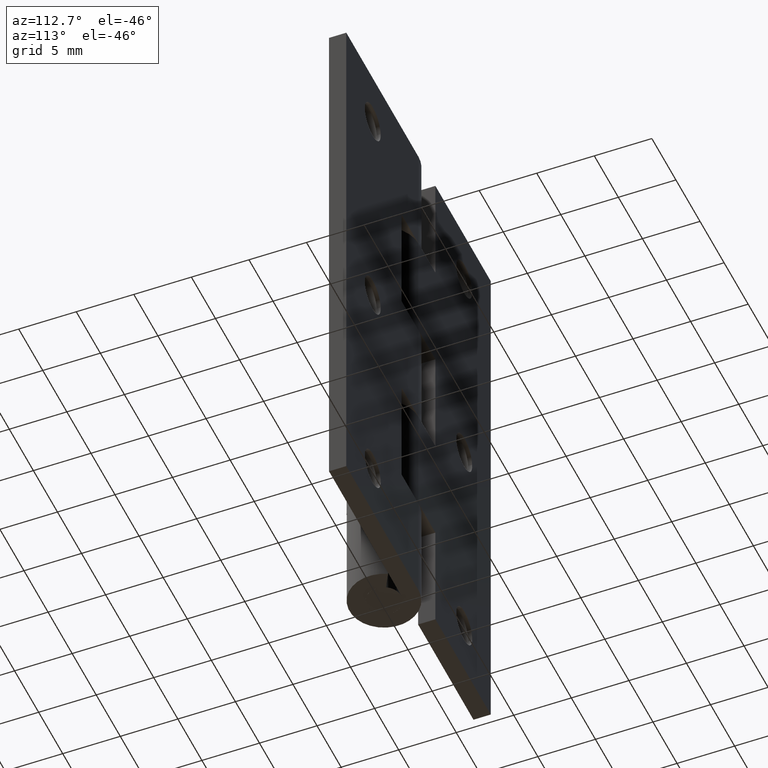
[diagram: clean part render]
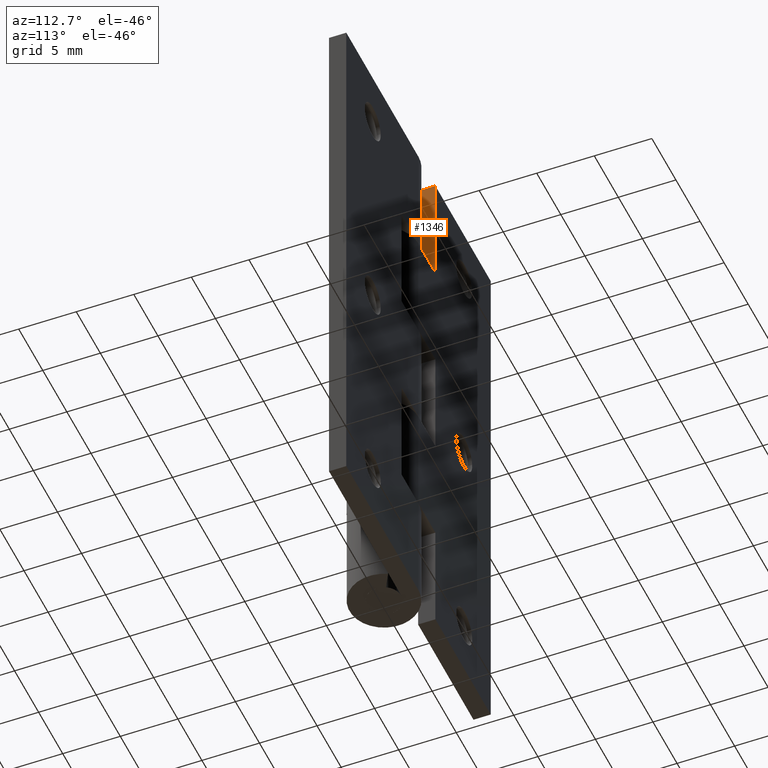
[diagram: same view with one face highlighted and labeled with its STEP entity id]
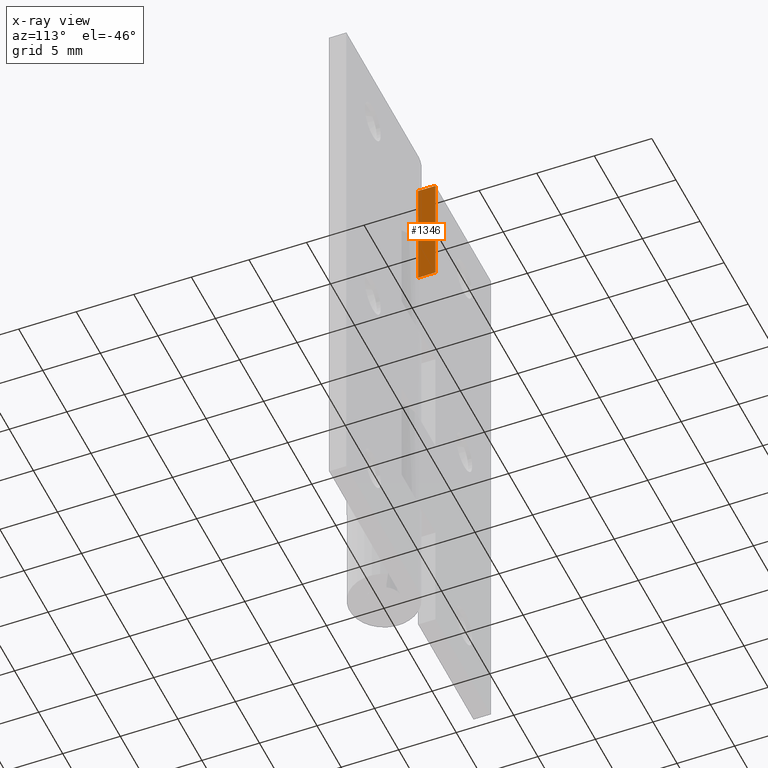
[diagram: x-ray of the same camera — body ghosted, the highlighted face saturated]
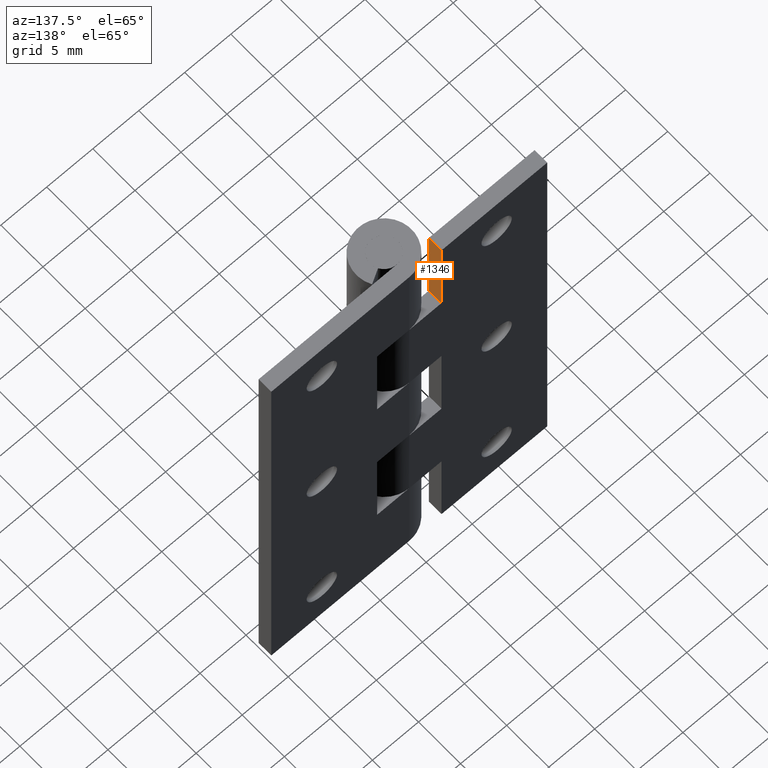
[diagram: same view with one face highlighted and labeled with its STEP entity id]
A machine part, auxiliary view. The second image highlights one B-rep face of the part: STEP entity #1346.
The next image is the same camera in x-ray: the body ghosted, the highlighted face saturated — about 1% of this face is hidden behind the body in this view.
A second angle (auxiliary view) of the same face is appended — the face is thin or edge-on in the first view.
In plain terms, the highlighted face is a freeform B-spline surface patch.
Its self-contained STEP definition (entity closure, byte-faithful):
#1311=CARTESIAN_POINT('',(-3.500000000000000,1.425075002907234,39.500500019381938));
#1312=CARTESIAN_POINT('',(-3.500000000000000,1.425075002907234,50.499500248838963));
#1313=CARTESIAN_POINT('',(-3.500000000000000,3.074925037325847,39.500500019381938));
#1314=CARTESIAN_POINT('',(-3.500000000000000,3.074925037325847,50.499500248838963));
#1315=B_SPLINE_SURFACE_WITH_KNOTS('',1,1,((#1311,#1313),(#1312,#1314)),.UNSPECIFIED.,.F.,.F.,.U.,(2,2),(2,2),(0.0,10.999000229457019),(0.041708334948495,0.958291687403247),.UNSPECIFIED.);
#1316=CARTESIAN_POINT('',(-3.500000000000000,1.499999999999946,50.0));
#1317=VERTEX_POINT('',#1316);
#1318=CARTESIAN_POINT('',(-3.500000000000000,1.499999999999946,40.0));
#1319=VERTEX_POINT('',#1318);
#1320=CARTESIAN_POINT('',(-3.500000000000000,1.499999999999946,50.0));
#1321=CARTESIAN_POINT('',(-3.500000000000000,1.499999999999946,40.0));
#1322=QUASI_UNIFORM_CURVE('',1,(#1320,#1321),.UNSPECIFIED.,.F.,.U.);
#1323=EDGE_CURVE('',#1317,#1319,#1322,.T.);
#1324=ORIENTED_EDGE('',*,*,#1323,.T.);
#1325=CARTESIAN_POINT('',(-3.500000000000000,3.0,40.0));
#1326=VERTEX_POINT('',#1325);
#1327=CARTESIAN_POINT('',(-3.500000000000000,1.499999999999946,40.0));
#1328=CARTESIAN_POINT('',(-3.500000000000000,3.0,40.0));
#1329=QUASI_UNIFORM_CURVE('',1,(#1327,#1328),.UNSPECIFIED.,.F.,.U.);
#1330=EDGE_CURVE('',#1319,#1326,#1329,.T.);
#1331=ORIENTED_EDGE('',*,*,#1330,.T.);
#1332=CARTESIAN_POINT('',(-3.500000000000000,3.0,50.0));
#1333=VERTEX_POINT('',#1332);
#1334=CARTESIAN_POINT('',(-3.500000000000000,3.0,40.0));
#1335=CARTESIAN_POINT('',(-3.500000000000000,3.0,50.0));
#1336=QUASI_UNIFORM_CURVE('',1,(#1334,#1335),.UNSPECIFIED.,.F.,.U.);
#1337=EDGE_CURVE('',#1326,#1333,#1336,.T.);
#1338=ORIENTED_EDGE('',*,*,#1337,.T.);
#1339=CARTESIAN_POINT('',(-3.500000000000000,1.499999999999946,50.0));
#1340=CARTESIAN_POINT('',(-3.500000000000000,3.0,50.0));
#1341=QUASI_UNIFORM_CURVE('',1,(#1339,#1340),.UNSPECIFIED.,.F.,.U.);
#1342=EDGE_CURVE('',#1317,#1333,#1341,.T.);
#1343=ORIENTED_EDGE('',*,*,#1342,.F.);
#1344=EDGE_LOOP('',(#1324,#1331,#1338,#1343));
#1345=FACE_OUTER_BOUND('',#1344,.T.);
#1346=ADVANCED_FACE('',(#1345),#1315,.F.);